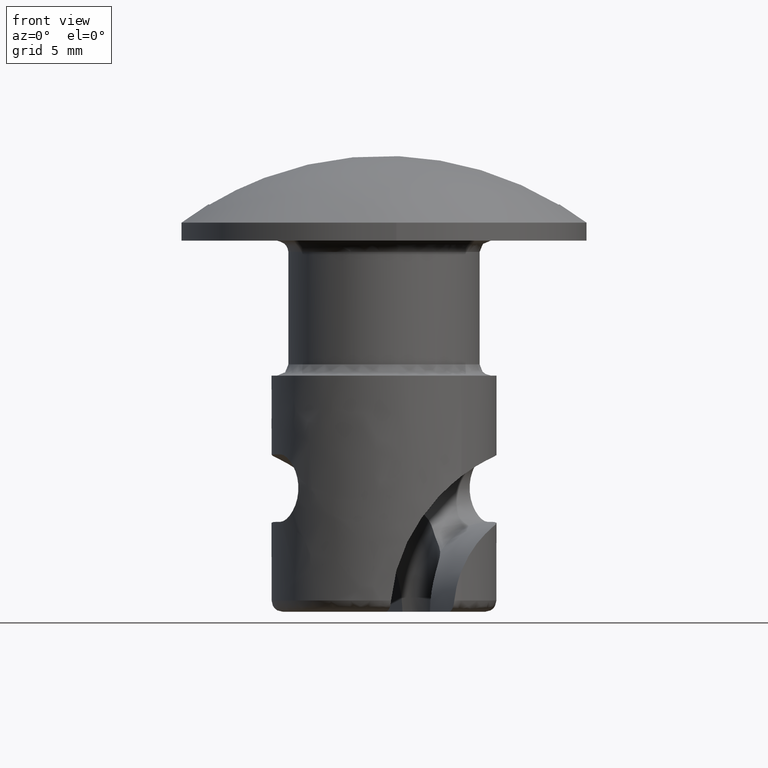
[diagram: clean part render]
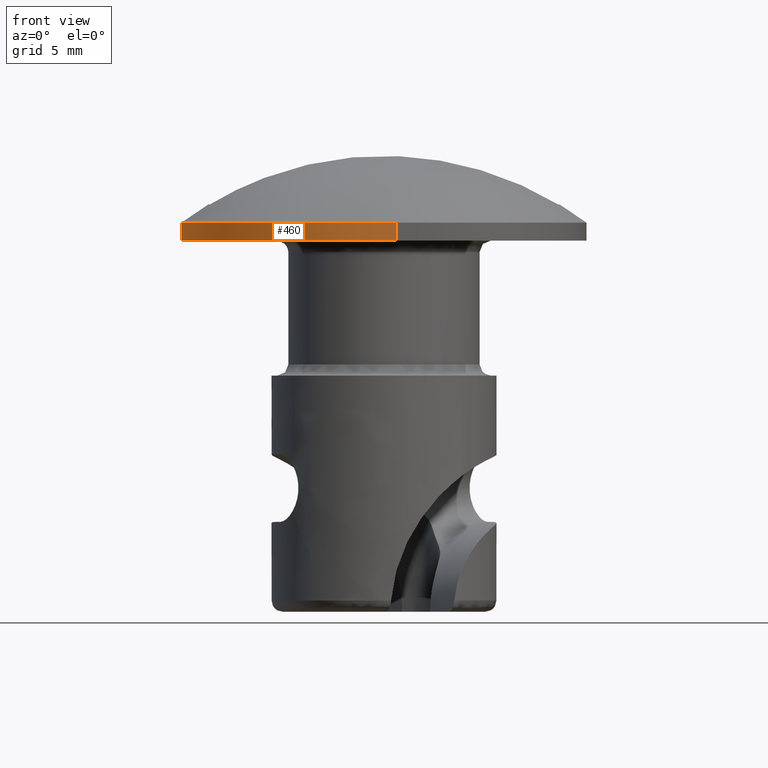
[diagram: same view with one face highlighted and labeled with its STEP entity id]
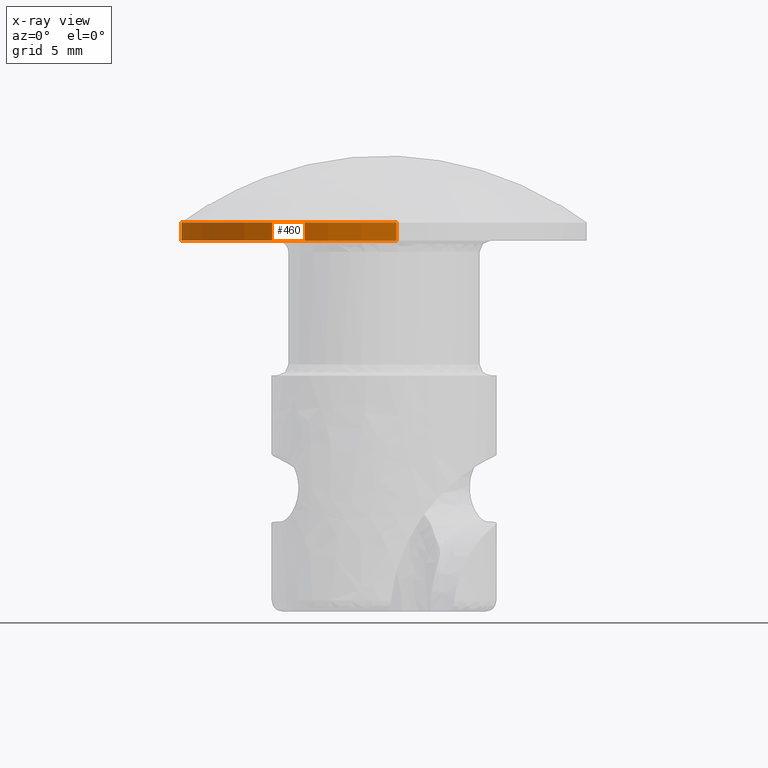
[diagram: x-ray of the same camera — body ghosted, the highlighted face saturated]
A machine part, front view. The second image highlights one B-rep face of the part: STEP entity #460.
The next image is the same camera in x-ray: the body ghosted, the highlighted face saturated — about 0% of this face is hidden behind the body in this view.
In plain terms, the highlighted face is a freeform B-spline surface patch.
Its self-contained STEP definition (entity closure, byte-faithful):
#297=CARTESIAN_POINT('',(-1.062301609337486,8.937086510197609,-8.314378E-014));
#298=VERTEX_POINT('',#297);
#316=CARTESIAN_POINT('',(-1.062301689583547,8.937086500659266,0.800003000000103));
#317=VERTEX_POINT('',#316);
#318=CARTESIAN_POINT('',(-1.062301689583547,8.937086500659266,0.800003000000103));
#319=CARTESIAN_POINT('',(-1.062301609337486,8.937086510197609,-8.314378E-014));
#320=QUASI_UNIFORM_CURVE('',1,(#318,#319),.UNSPECIFIED.,.F.,.U.);
#321=EDGE_CURVE('',#317,#298,#320,.T.);
#340=CARTESIAN_POINT('',(0.549431581206479,-8.983213508402491,0.800003000000103));
#341=VERTEX_POINT('',#340);
#355=CARTESIAN_POINT('',(0.549431515278102,-8.983213512434766,-1.288674E-013));
#356=VERTEX_POINT('',#355);
#357=CARTESIAN_POINT('',(0.549431581206479,-8.983213508402491,0.800003000000103));
#358=CARTESIAN_POINT('',(0.549431515278102,-8.983213512434766,-1.288674E-013));
#359=QUASI_UNIFORM_CURVE('',1,(#357,#358),.UNSPECIFIED.,.F.,.U.);
#360=EDGE_CURVE('',#341,#356,#359,.T.);
#378=CARTESIAN_POINT('',(0.549436855813713,-8.983213185796799,0.820003075000106));
#379=CARTESIAN_POINT('',(-8.433776329983086,-9.532650041610513,0.820003075000106));
#380=CARTESIAN_POINT('',(-8.983213185796799,-0.549436855813713,0.820003075000106));
#381=CARTESIAN_POINT('',(-9.502075770592745,7.933891417555507,0.820003075000106));
#382=CARTESIAN_POINT('',(-1.062308111910826,8.937085737272998,0.820003075000106));
#383=CARTESIAN_POINT('',(0.549436855813713,-8.983213185796799,-0.020500076875003));
#384=CARTESIAN_POINT('',(-8.433776329983086,-9.532650041610513,-0.020500076875003));
#385=CARTESIAN_POINT('',(-8.983213185796799,-0.549436855813713,-0.020500076875003));
#386=CARTESIAN_POINT('',(-9.502075770592745,7.933891417555507,-0.020500076875003));
#387=CARTESIAN_POINT('',(-1.062308111910826,8.937085737272998,-0.020500076875003));
#395=(BOUNDED_SURFACE()B_SPLINE_SURFACE(2,1,((#378,#383),(#379,#384),(#380,#385),(#381,#386),(#382,#387)),.UNSPECIFIED.,.F.,.F.,.U.)B_SPLINE_SURFACE_WITH_KNOTS((3,2,3),(2,2),(0.0,14.911688245431421,29.226908961045581),(0.0,1.0),.UNSPECIFIED.)GEOMETRIC_REPRESENTATION_ITEM()RATIONAL_B_SPLINE_SURFACE(((1.0,1.0),(0.707106781186548,0.707106781186548),(1.0,1.0),(0.718822509939086,0.718822509939086),(0.977505800795127,0.977505800795127)))REPRESENTATION_ITEM('')SURFACE());
#396=CARTESIAN_POINT('',(-9.0,0.0,0.0));
#397=VERTEX_POINT('',#396);
#398=CARTESIAN_POINT('',(-9.0,0.0,0.0));
#399=CARTESIAN_POINT('',(-9.0,7.993576590584168,0.0));
#400=CARTESIAN_POINT('',(-1.062301609337486,8.937086510197608,-8.314378E-014));
#408=(BOUNDED_CURVE()B_SPLINE_CURVE(2,(#398,#399,#400),.UNSPECIFIED.,.F.,.U.)B_SPLINE_CURVE_WITH_KNOTS((3,3),(0.0,0.229562596481464),.UNSPECIFIED.)CURVE()GEOMETRIC_REPRESENTATION_ITEM()RATIONAL_B_SPLINE_CURVE((1.0,0.731050688789481,0.956026995206066))REPRESENTATION_ITEM(''));
#409=EDGE_CURVE('',#397,#298,#408,.T.);
#410=ORIENTED_EDGE('',*,*,#409,.F.);
#411=CARTESIAN_POINT('',(0.549431515278102,-8.983213512434766,-1.288674E-013));
#412=CARTESIAN_POINT('',(0.274972191932445,-9.0,0.0));
#413=CARTESIAN_POINT('',(0.0,-9.0,0.0));
#414=CARTESIAN_POINT('',(-9.0,-9.0,0.0));
#415=CARTESIAN_POINT('',(-9.0,0.0,0.0));
#423=(BOUNDED_CURVE()B_SPLINE_CURVE(2,(#411,#412,#413,#414,#415),.UNSPECIFIED.,.F.,.U.)B_SPLINE_CURVE_WITH_KNOTS((3,2,3),(0.739333064821338,0.750000000000000,1.0),.UNSPECIFIED.)CURVE()GEOMETRIC_REPRESENTATION_ITEM()RATIONAL_B_SPLINE_CURVE((0.976072261520416,0.987502908082589,1.0,0.707106781186547,1.0))REPRESENTATION_ITEM(''));
#424=EDGE_CURVE('',#356,#397,#423,.T.);
#425=ORIENTED_EDGE('',*,*,#424,.F.);
#426=ORIENTED_EDGE('',*,*,#360,.F.);
#427=CARTESIAN_POINT('',(-9.0,0.0,0.800003000000103));
#428=VERTEX_POINT('',#427);
#429=CARTESIAN_POINT('',(0.549431581206479,-8.983213508402491,0.800003000000103));
#430=CARTESIAN_POINT('',(0.274972224989059,-9.000000000000002,0.800003000000103));
#431=CARTESIAN_POINT('',(0.0,-9.0,0.800003000000103));
#432=CARTESIAN_POINT('',(-9.0,-9.0,0.800003000000103));
#433=CARTESIAN_POINT('',(-9.0,0.0,0.800003000000103));
#441=(BOUNDED_CURVE()B_SPLINE_CURVE(2,(#429,#430,#431,#432,#433),.UNSPECIFIED.,.F.,.U.)B_SPLINE_CURVE_WITH_KNOTS((3,2,3),(0.739333063555006,0.750000000000000,1.0),.UNSPECIFIED.)CURVE()GEOMETRIC_REPRESENTATION_ITEM()RATIONAL_B_SPLINE_CURVE((0.976072258806423,0.987502906598989,1.0,0.707106781186547,1.0))REPRESENTATION_ITEM(''));
#442=EDGE_CURVE('',#341,#428,#441,.T.);
#443=ORIENTED_EDGE('',*,*,#442,.T.);
#444=CARTESIAN_POINT('',(-9.0,0.0,0.800003000000103));
#445=CARTESIAN_POINT('',(-9.000000000000002,7.993576518304625,0.800003000000103));
#446=CARTESIAN_POINT('',(-1.062301689583547,8.937086500659266,0.800003000000103));
#454=(BOUNDED_CURVE()B_SPLINE_CURVE(2,(#444,#445,#446),.UNSPECIFIED.,.F.,.U.)B_SPLINE_CURVE_WITH_KNOTS((3,3),(0.0,0.229562594963984),.UNSPECIFIED.)CURVE()GEOMETRIC_REPRESENTATION_ITEM()RATIONAL_B_SPLINE_CURVE((1.0,0.731050690567319,0.956026992231740))REPRESENTATION_ITEM(''));
#455=EDGE_CURVE('',#428,#317,#454,.T.);
#456=ORIENTED_EDGE('',*,*,#455,.T.);
#457=ORIENTED_EDGE('',*,*,#321,.T.);
#458=EDGE_LOOP('',(#410,#425,#426,#443,#456,#457));
#459=FACE_OUTER_BOUND('',#458,.T.);
#460=ADVANCED_FACE('',(#459),#395,.T.);